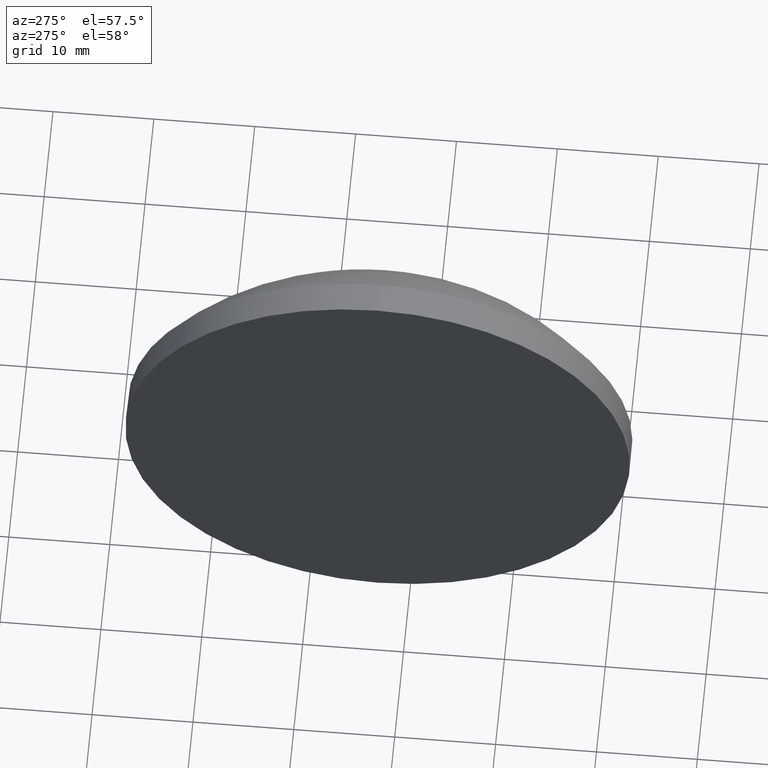
[diagram: clean part render]
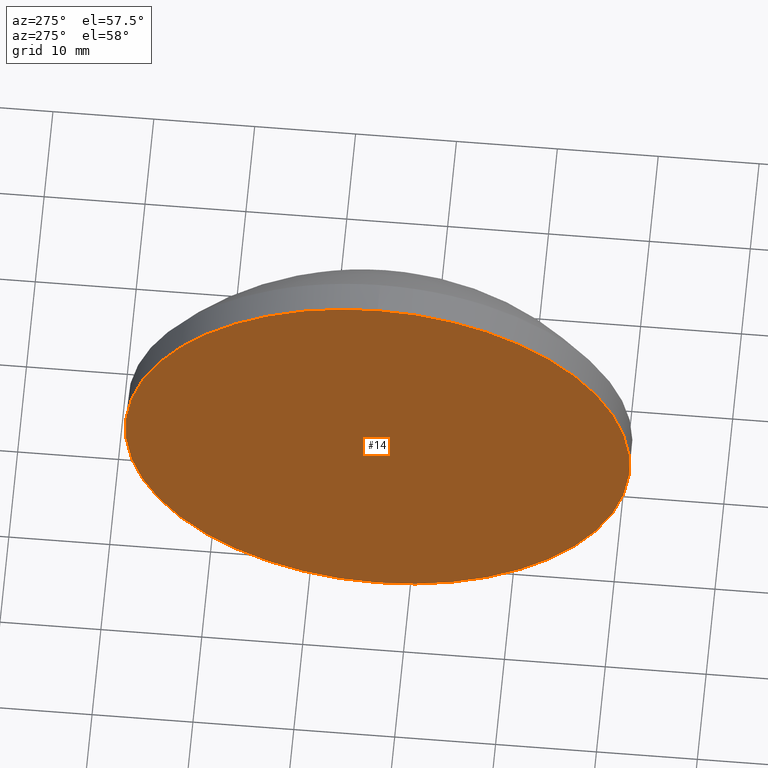
[diagram: same view with one face highlighted and labeled with its STEP entity id]
A machine part, auxiliary view. The second image highlights one B-rep face of the part: STEP entity #14.
In plain terms, the highlighted planar face has unit normal (1, 0, 0).
Its self-contained STEP definition (entity closure, byte-faithful):
#5 = DIRECTION ( 'NONE',  ( -1.000000000000000000, -0.0000000000000000000, -0.0000000000000000000 ) ) ;
#14 = ADVANCED_FACE ( 'NONE', ( #96 ), #156, .F. ) ;
#17 = DIRECTION ( 'NONE',  ( 1.000000000000000000, 0.0000000000000000000, 0.0000000000000000000 ) ) ;
#22 = CARTESIAN_POINT ( 'NONE',  ( 397.1609582187644500, 63.20629092500522000, 24.99999999999999300 ) ) ;
#23 = EDGE_CURVE ( 'NONE', #75, #55, #90, .T. ) ;
#36 = CARTESIAN_POINT ( 'NONE',  ( 397.1609582187644500, 63.20629092500522000, 0.0000000000000000000 ) ) ;
#42 = CIRCLE ( 'NONE', #129, 24.99999999999999300 ) ;
#49 = CARTESIAN_POINT ( 'NONE',  ( 397.1609582187644500, 63.20629092500522000, 0.0000000000000000000 ) ) ;
#55 = VERTEX_POINT ( 'NONE', #104 ) ;
#75 = VERTEX_POINT ( 'NONE', #22 ) ;
#83 = DIRECTION ( 'NONE',  ( 0.0000000000000000000, 0.0000000000000000000, 1.000000000000000000 ) ) ;
#87 = AXIS2_PLACEMENT_3D ( 'NONE', #173, #17, #116 ) ;
#90 = CIRCLE ( 'NONE', #100, 24.99999999999999300 ) ;
#96 = FACE_OUTER_BOUND ( 'NONE', #174, .T. ) ;
#99 = ORIENTED_EDGE ( 'NONE', *, *, #164, .T. ) ;
#100 = AXIS2_PLACEMENT_3D ( 'NONE', #49, #5, #136 ) ;
#104 = CARTESIAN_POINT ( 'NONE',  ( 397.1609582187644500, 63.20629092500522000, -24.99999999999999300 ) ) ;
#116 = DIRECTION ( 'NONE',  ( 0.0000000000000000000, 0.0000000000000000000, -1.000000000000000000 ) ) ;
#129 = AXIS2_PLACEMENT_3D ( 'NONE', #36, #138, #83 ) ;
#136 = DIRECTION ( 'NONE',  ( 0.0000000000000000000, 0.0000000000000000000, 1.000000000000000000 ) ) ;
#138 = DIRECTION ( 'NONE',  ( -1.000000000000000000, -0.0000000000000000000, -0.0000000000000000000 ) ) ;
#145 = ORIENTED_EDGE ( 'NONE', *, *, #23, .T. ) ;
#156 = PLANE ( 'NONE',  #87 ) ;
#164 = EDGE_CURVE ( 'NONE', #55, #75, #42, .T. ) ;
#173 = CARTESIAN_POINT ( 'NONE',  ( 397.1609582187644500, 63.20629092500522000, 0.0000000000000000000 ) ) ;
#174 = EDGE_LOOP ( 'NONE', ( #145, #99 ) ) ;